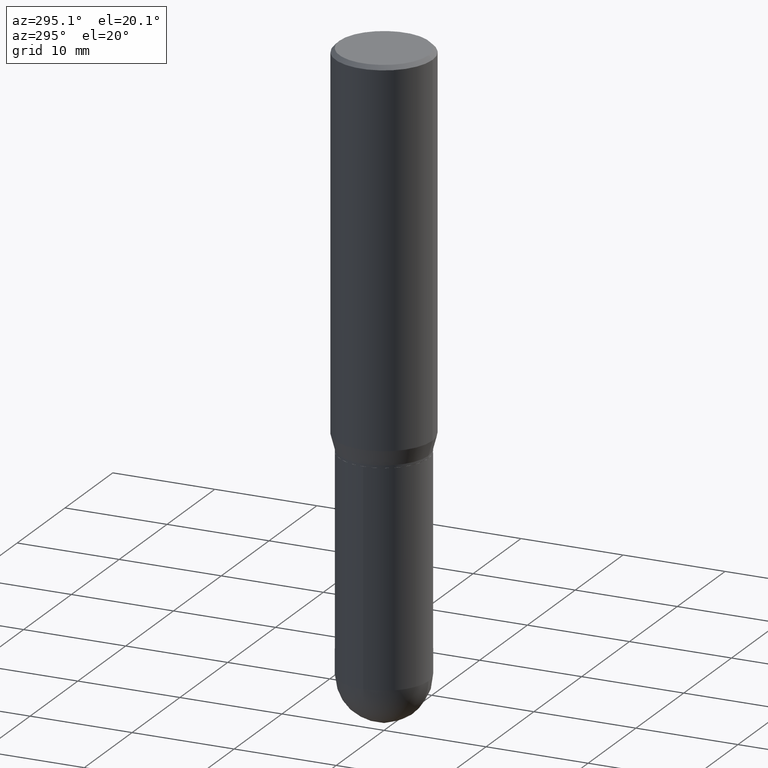
[diagram: clean part render]
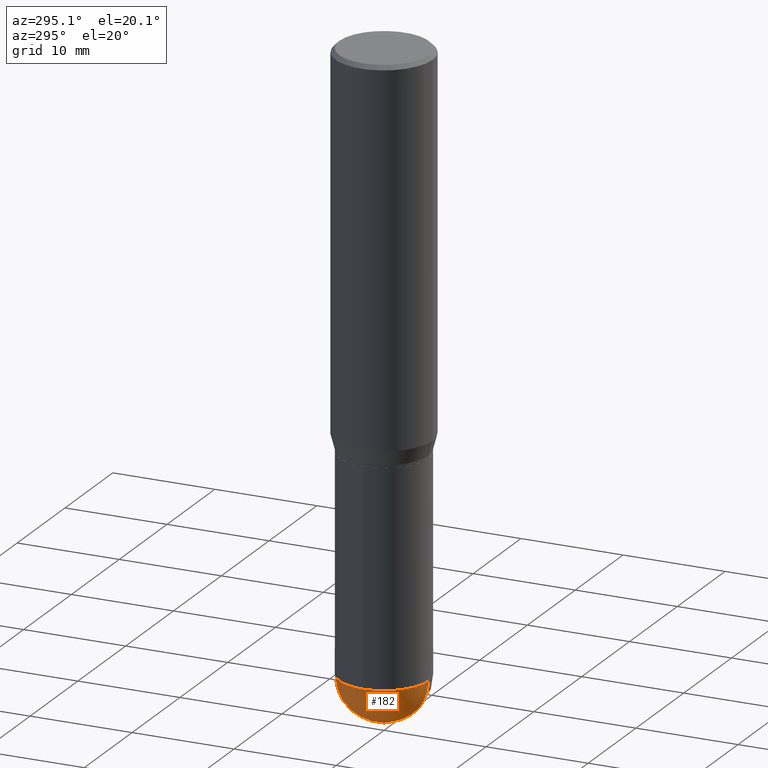
[diagram: same view with one face highlighted and labeled with its STEP entity id]
A machine part, auxiliary view. The second image highlights one B-rep face of the part: STEP entity #182.
In plain terms, the highlighted spherical surface has radius 4.3663 mm.
Its self-contained STEP definition (entity closure, byte-faithful):
#11 = DIRECTION ( 'NONE',  ( 6.982962677686266711E-15, 1.000000000000000000, 0.000000000000000000 ) ) ;
#19 = EDGE_CURVE ( 'NONE', #459, #285, #353, .T. ) ;
#35 = CARTESIAN_POINT ( 'NONE',  ( 1.200371284294326039E-15, 0.1718999999999918094, -2.328100000000000946 ) ) ;
#49 = EDGE_LOOP ( 'NONE', ( #399, #344, #511, #274 ) ) ;
#58 = AXIS2_PLACEMENT_3D ( 'NONE', #233, #273, #11 ) ;
#82 = VERTEX_POINT ( 'NONE', #35 ) ;
#90 = AXIS2_PLACEMENT_3D ( 'NONE', #397, #235, #356 ) ;
#100 = CIRCLE ( 'NONE', #58, 0.1718999999999999417 ) ;
#105 = DIRECTION ( 'NONE',  ( -2.445468806185136597E-29, 3.491481338843145583E-15, 1.000000000000000000 ) ) ;
#107 = AXIS2_PLACEMENT_3D ( 'NONE', #177, #247, #168 ) ;
#123 = EDGE_CURVE ( 'NONE', #82, #443, #413, .T. ) ;
#130 = FACE_OUTER_BOUND ( 'NONE', #49, .T. ) ;
#143 = DIRECTION ( 'NONE',  ( 1.000000000000000000, -6.982962677686271444E-15, 0.000000000000000000 ) ) ;
#158 = CARTESIAN_POINT ( 'NONE',  ( 5.678595619168622984E-29, -8.149569383438070914E-15, -2.328100000000000058 ) ) ;
#168 = DIRECTION ( 'NONE',  ( 6.982962677686265922E-15, 1.000000000000000000, -3.178415350394722463E-15 ) ) ;
#177 = CARTESIAN_POINT ( 'NONE',  ( 5.678595619168622984E-29, -8.149569383438070914E-15, -2.328100000000000058 ) ) ;
#182 = ADVANCED_FACE ( 'NONE', ( #130 ), #250, .T. ) ;
#187 = CARTESIAN_POINT ( 'NONE',  ( 5.693295927679617284E-29, -8.128517704960729139E-15, -2.328100000000000058 ) ) ;
#233 = CARTESIAN_POINT ( 'NONE',  ( 5.678595619168622984E-29, -8.149569383438070914E-15, -2.328100000000000058 ) ) ;
#235 = DIRECTION ( 'NONE',  ( -2.445468806185136597E-29, 3.491481338843145583E-15, 1.000000000000000000 ) ) ;
#247 = DIRECTION ( 'NONE',  ( -1.000000000000000000, 6.982962677686265922E-15, -4.883557194083112340E-29 ) ) ;
#250 = SPHERICAL_SURFACE ( 'NONE', #107, 0.1718999999999999417 ) ;
#273 = DIRECTION ( 'NONE',  ( 1.000000000000000000, -6.982962677686265922E-15, 4.883557194083112340E-29 ) ) ;
#274 = ORIENTED_EDGE ( 'NONE', *, *, #123, .F. ) ;
#275 = DIRECTION ( 'NONE',  ( -1.000000000000000000, 7.105427357601001070E-15, -4.926315508542082329E-29 ) ) ;
#284 = EDGE_CURVE ( 'NONE', #443, #285, #437, .T. ) ;
#285 = VERTEX_POINT ( 'NONE', #476 ) ;
#344 = ORIENTED_EDGE ( 'NONE', *, *, #19, .T. ) ;
#348 = DIRECTION ( 'NONE',  ( -7.105427357601001070E-15, -1.000000000000000000, 0.000000000000000000 ) ) ;
#353 = CIRCLE ( 'NONE', #468, 0.1718999999999999417 ) ;
#354 = AXIS2_PLACEMENT_3D ( 'NONE', #187, #105, #143 ) ;
#356 = DIRECTION ( 'NONE',  ( 1.000000000000000000, -6.982962677686271444E-15, 0.000000000000000000 ) ) ;
#365 = EDGE_CURVE ( 'NONE', #459, #82, #100, .T. ) ;
#397 = CARTESIAN_POINT ( 'NONE',  ( 5.693295927679617284E-29, -8.128517704960729139E-15, -2.328100000000000058 ) ) ;
#399 = ORIENTED_EDGE ( 'NONE', *, *, #365, .F. ) ;
#413 = CIRCLE ( 'NONE', #354, 0.1719000000000000250 ) ;
#437 = CIRCLE ( 'NONE', #90, 0.1719000000000000250 ) ;
#443 = VERTEX_POINT ( 'NONE', #488 ) ;
#459 = VERTEX_POINT ( 'NONE', #493 ) ;
#468 = AXIS2_PLACEMENT_3D ( 'NONE', #158, #275, #348 ) ;
#476 = CARTESIAN_POINT ( 'NONE',  ( -1.221422962771555008E-15, -0.1719000000000081296, -2.328099999999999614 ) ) ;
#488 = CARTESIAN_POINT ( 'NONE',  ( -0.1719000000000000250, -5.461446893841112247E-15, -2.328100000000000058 ) ) ;
#493 = CARTESIAN_POINT ( 'NONE',  ( 6.106321861207344902E-29, -8.739229186346536619E-15, -2.500000000000000000 ) ) ;
#511 = ORIENTED_EDGE ( 'NONE', *, *, #284, .F. ) ;